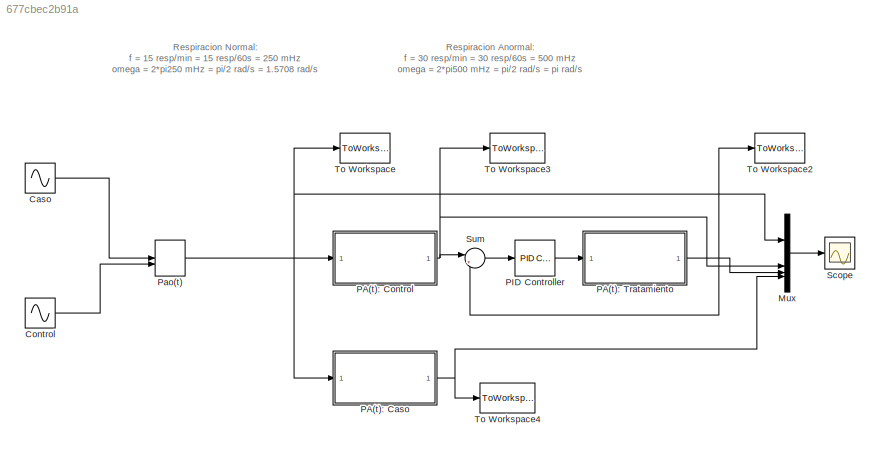
MODEL slx_677cbec2b91a
KIND model
CONFIG AbsTol = auto
CONFIG EnableMultiTasking = off
CONFIG FixedStep = auto
CONFIG MaxStep = auto
CONFIG MinStep = auto
CONFIG RelTol = 1e-3
CONFIG SampleTimeConstraint = Unconstrained
CONFIG SolverName = VariableStepAuto
CONFIG StartTime = 0.0
CONFIG StopTime = 30.0
BLOCK [Sin] Caso
  Amplitude = 1.5
  Frequency = pi
  SampleTime = 0
BLOCK [Sin] Control
  Amplitude = 2.5
  Frequency = 1.5708
  SampleTime = 0
BLOCK [Mux] Mux
  DisplayOption = bar
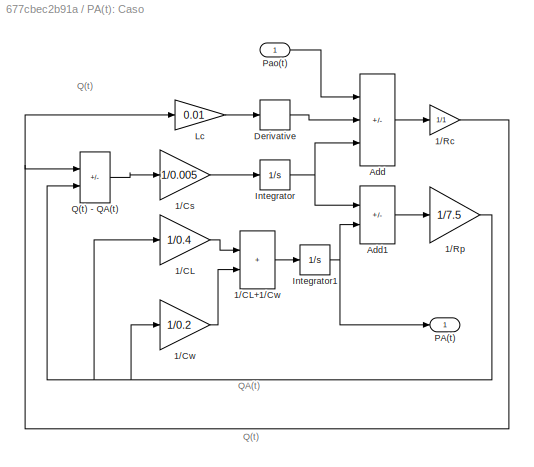
BLOCK [SubSystem] PA(t): Caso
BLOCK [Gain] PA(t): Caso/1//CL
  Gain = 1/0.4
BLOCK [Sum] PA(t): Caso/1//CL+1//Cw
  IconShape = rectangular
BLOCK [Gain] PA(t): Caso/1//Cs
  Gain = 1/0.005
BLOCK [Gain] PA(t): Caso/1//Cw
  Gain = 1/0.2
BLOCK [Gain] PA(t): Caso/1//Rc
  Gain = 1/1
BLOCK [Gain] PA(t): Caso/1//Rp
  Gain = 1/7.5
BLOCK [Sum] PA(t): Caso/Add
  IconShape = rectangular
  Inputs = +--
BLOCK [Sum] PA(t): Caso/Add1
  IconShape = rectangular
  Inputs = +-
BLOCK [Derivative] PA(t): Caso/Derivative
BLOCK [Integrator] PA(t): Caso/Integrator
BLOCK [Integrator] PA(t): Caso/Integrator1
BLOCK [Gain] PA(t): Caso/Lc
  Gain = 0.01
BLOCK [Outport] PA(t): Caso/PA(t)
BLOCK [Inport] PA(t): Caso/Pao(t)
BLOCK [Sum] PA(t): Caso/Q(t) - QA(t)
  IconShape = rectangular
  Inputs = +-
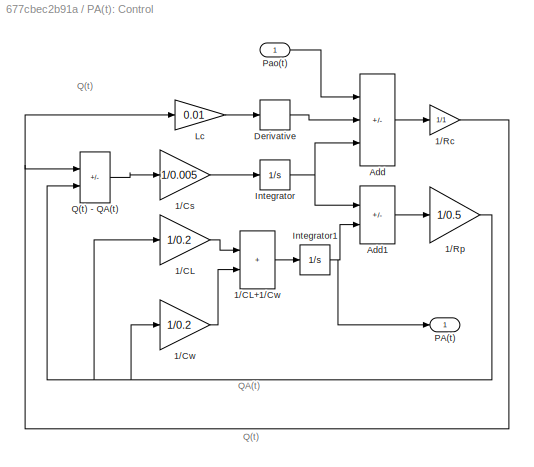
BLOCK [SubSystem] PA(t): Control
BLOCK [Gain] PA(t): Control/1//CL
  Gain = 1/0.2
BLOCK [Sum] PA(t): Control/1//CL+1//Cw
  IconShape = rectangular
BLOCK [Gain] PA(t): Control/1//Cs
  Gain = 1/0.005
BLOCK [Gain] PA(t): Control/1//Cw
  Gain = 1/0.2
BLOCK [Gain] PA(t): Control/1//Rc
  Gain = 1/1
BLOCK [Gain] PA(t): Control/1//Rp
  Gain = 1/0.5
BLOCK [Sum] PA(t): Control/Add
  IconShape = rectangular
  Inputs = +--
BLOCK [Sum] PA(t): Control/Add1
  IconShape = rectangular
  Inputs = +-
BLOCK [Derivative] PA(t): Control/Derivative
BLOCK [Integrator] PA(t): Control/Integrator
BLOCK [Integrator] PA(t): Control/Integrator1
BLOCK [Gain] PA(t): Control/Lc
  Gain = 0.01
BLOCK [Outport] PA(t): Control/PA(t)
BLOCK [Inport] PA(t): Control/Pao(t)
BLOCK [Sum] PA(t): Control/Q(t) - QA(t)
  IconShape = rectangular
  Inputs = +-
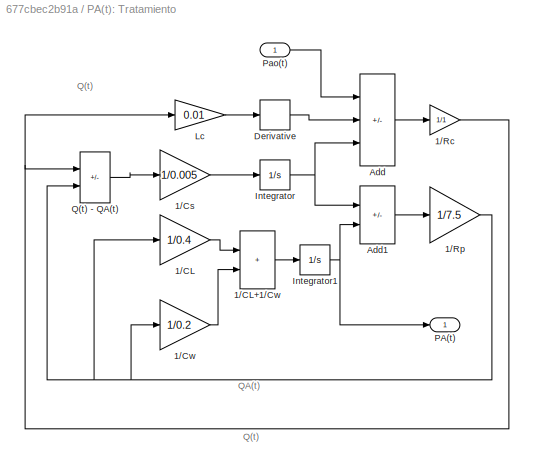
BLOCK [SubSystem] PA(t): Tratamiento
BLOCK [Gain] PA(t): Tratamiento/1//CL
  Gain = 1/0.4
BLOCK [Sum] PA(t): Tratamiento/1//CL+1//Cw
  IconShape = rectangular
BLOCK [Gain] PA(t): Tratamiento/1//Cs
  Gain = 1/0.005
BLOCK [Gain] PA(t): Tratamiento/1//Cw
  Gain = 1/0.2
BLOCK [Gain] PA(t): Tratamiento/1//Rc
  Gain = 1/1
BLOCK [Gain] PA(t): Tratamiento/1//Rp
  Gain = 1/7.5
BLOCK [Sum] PA(t): Tratamiento/Add
  IconShape = rectangular
  Inputs = +--
BLOCK [Sum] PA(t): Tratamiento/Add1
  IconShape = rectangular
  Inputs = +-
BLOCK [Derivative] PA(t): Tratamiento/Derivative
BLOCK [Integrator] PA(t): Tratamiento/Integrator
BLOCK [Integrator] PA(t): Tratamiento/Integrator1
BLOCK [Gain] PA(t): Tratamiento/Lc
  Gain = 0.01
BLOCK [Outport] PA(t): Tratamiento/PA(t)
BLOCK [Inport] PA(t): Tratamiento/Pao(t)
BLOCK [Sum] PA(t): Tratamiento/Q(t) - QA(t)
  IconShape = rectangular
  Inputs = +-
BLOCK [Reference] PID Controller  REF=slpidlib/PID Controller
  LibrarySourceBlock = simulink/Continuous/PID Controller
  SourceBlock = slpidlib/PID Controller
  SourceType = PID 1dof
BLOCK [ManualSwitch] Pao(t)
  CurrentSetting = 0
BLOCK [Scope] Scope
  Floating = off
  NumInputPorts = 1
  ScopeSpecificationString = Simulink.scopes.TimeScopeBlockCfg('CurrentConfiguration', extmgr.ConfigurationSet(extmgr.Configuration('Core','General UI',true),extmgr.Configuration('Core','Source UI',true),extmgr.Configuration('Sources','WiredSimulink',true),extmgr.Configuration('Visuals','Time Domain',true,'SerializedDisplays',{struct('MinYLimReal','-1.5','MaxYLimReal','1.5','YLabelReal','','MinYLimMag','0.00000','MaxYLimMag',...<+1867ch>
BLOCK [Sum] Sum
  Inputs = |+-
BLOCK [ToWorkspace] To Workspace
  FixptAsFi = on
  MaxDataPoints = inf
  SampleTime = -1
  VariableName = Pao
BLOCK [ToWorkspace] To Workspace2
  FixptAsFi = on
  MaxDataPoints = inf
  SampleTime = -1
  VariableName = PAz
BLOCK [ToWorkspace] To Workspace3
  FixptAsFi = on
  MaxDataPoints = inf
  SampleTime = -1
  VariableName = PAx
BLOCK [ToWorkspace] To Workspace4
  FixptAsFi = on
  MaxDataPoints = inf
  SampleTime = -1
  VariableName = PAy
ANNOTATION (root): Respiracion Anormal: f = 30 resp/min = 30 resp/60s = 500 mHz omega = 2*pi500 mHz = pi/2 rad/s = pi rad/s
ANNOTATION (root): Respiracion Normal: f = 15 resp/min = 15 resp/60s = 250 mHz omega = 2*pi250 mHz = pi/2 rad/s = 1.5708 rad/s
ANNOTATION PA(t): Caso: QA(t)
ANNOTATION PA(t): Caso: Q(t)
ANNOTATION PA(t): Control: QA(t)
ANNOTATION PA(t): Control: Q(t)
ANNOTATION PA(t): Tratamiento: QA(t)
ANNOTATION PA(t): Tratamiento: Q(t)
LINE Caso:1 -> Pao(t):1
LINE Control:1 -> Pao(t):2
LINE Mux:1 -> Scope:1
LINE PA(t): Caso/1//CL+1//Cw:1 -> PA(t): Caso/Integrator1:1
LINE PA(t): Caso/1//CL:1 -> PA(t): Caso/1//CL+1//Cw:1
LINE PA(t): Caso/1//Cs:1 -> PA(t): Caso/Integrator:1
LINE PA(t): Caso/1//Cw:1 -> PA(t): Caso/1//CL+1//Cw:2
NET PA(t): Caso/1//Rc:1 -> PA(t): Caso/Lc:1, PA(t): Caso/Q(t) - QA(t):1
NET PA(t): Caso/1//Rp:1 -> PA(t): Caso/1//CL:1, PA(t): Caso/1//Cw:1, PA(t): Caso/Q(t) - QA(t):2
LINE PA(t): Caso/Add1:1 -> PA(t): Caso/1//Rp:1
LINE PA(t): Caso/Add:1 -> PA(t): Caso/1//Rc:1
LINE PA(t): Caso/Derivative:1 -> PA(t): Caso/Add:2
NET PA(t): Caso/Integrator1:1 -> PA(t): Caso/Add1:2, PA(t): Caso/PA(t):1
NET PA(t): Caso/Integrator:1 -> PA(t): Caso/Add1:1, PA(t): Caso/Add:3
LINE PA(t): Caso/Lc:1 -> PA(t): Caso/Derivative:1
LINE PA(t): Caso/Pao(t):1 -> PA(t): Caso/Add:1
LINE PA(t): Caso/Q(t) - QA(t):1 -> PA(t): Caso/1//Cs:1
NET PA(t): Caso:1 -> Mux:4, To Workspace4:1
LINE PA(t): Control/1//CL+1//Cw:1 -> PA(t): Control/Integrator1:1
LINE PA(t): Control/1//CL:1 -> PA(t): Control/1//CL+1//Cw:1
LINE PA(t): Control/1//Cs:1 -> PA(t): Control/Integrator:1
LINE PA(t): Control/1//Cw:1 -> PA(t): Control/1//CL+1//Cw:2
NET PA(t): Control/1//Rc:1 -> PA(t): Control/Lc:1, PA(t): Control/Q(t) - QA(t):1
NET PA(t): Control/1//Rp:1 -> PA(t): Control/1//CL:1, PA(t): Control/1//Cw:1, PA(t): Control/Q(t) - QA(t):2
LINE PA(t): Control/Add1:1 -> PA(t): Control/1//Rp:1
LINE PA(t): Control/Add:1 -> PA(t): Control/1//Rc:1
LINE PA(t): Control/Derivative:1 -> PA(t): Control/Add:2
NET PA(t): Control/Integrator1:1 -> PA(t): Control/Add1:2, PA(t): Control/PA(t):1
NET PA(t): Control/Integrator:1 -> PA(t): Control/Add1:1, PA(t): Control/Add:3
LINE PA(t): Control/Lc:1 -> PA(t): Control/Derivative:1
LINE PA(t): Control/Pao(t):1 -> PA(t): Control/Add:1
LINE PA(t): Control/Q(t) - QA(t):1 -> PA(t): Control/1//Cs:1
NET PA(t): Control:1 -> Mux:2, Sum:1, To Workspace3:1
LINE PA(t): Tratamiento/1//CL+1//Cw:1 -> PA(t): Tratamiento/Integrator1:1
LINE PA(t): Tratamiento/1//CL:1 -> PA(t): Tratamiento/1//CL+1//Cw:1
LINE PA(t): Tratamiento/1//Cs:1 -> PA(t): Tratamiento/Integrator:1
LINE PA(t): Tratamiento/1//Cw:1 -> PA(t): Tratamiento/1//CL+1//Cw:2
NET PA(t): Tratamiento/1//Rc:1 -> PA(t): Tratamiento/Lc:1, PA(t): Tratamiento/Q(t) - QA(t):1
NET PA(t): Tratamiento/1//Rp:1 -> PA(t): Tratamiento/1//CL:1, PA(t): Tratamiento/1//Cw:1, PA(t): Tratamiento/Q(t) - QA(t):2
LINE PA(t): Tratamiento/Add1:1 -> PA(t): Tratamiento/1//Rp:1
LINE PA(t): Tratamiento/Add:1 -> PA(t): Tratamiento/1//Rc:1
LINE PA(t): Tratamiento/Derivative:1 -> PA(t): Tratamiento/Add:2
NET PA(t): Tratamiento/Integrator1:1 -> PA(t): Tratamiento/Add1:2, PA(t): Tratamiento/PA(t):1
NET PA(t): Tratamiento/Integrator:1 -> PA(t): Tratamiento/Add1:1, PA(t): Tratamiento/Add:3
LINE PA(t): Tratamiento/Lc:1 -> PA(t): Tratamiento/Derivative:1
LINE PA(t): Tratamiento/Pao(t):1 -> PA(t): Tratamiento/Add:1
LINE PA(t): Tratamiento/Q(t) - QA(t):1 -> PA(t): Tratamiento/1//Cs:1
NET PA(t): Tratamiento:1 -> Mux:3, Sum:2, To Workspace2:1
LINE PID Controller:1 -> PA(t): Tratamiento:1
NET Pao(t):1 -> Mux:1, PA(t): Caso:1, PA(t): Control:1, To Workspace:1
LINE Sum:1 -> PID Controller:1
note: NET lines group one-source signal fan-out (src -> all destinations, sorted); 1:1 wires keep LINE
